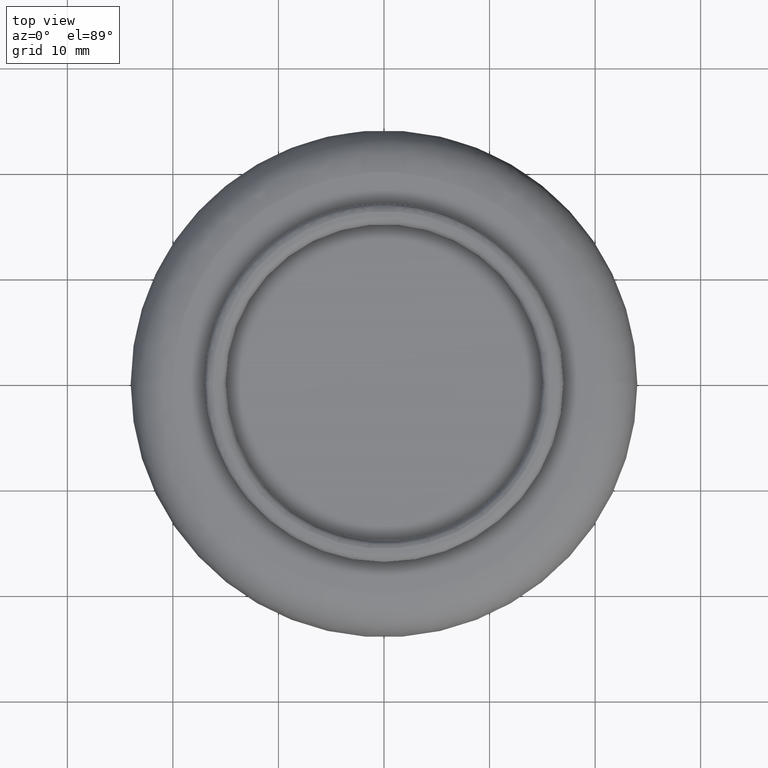
[diagram: clean part render]
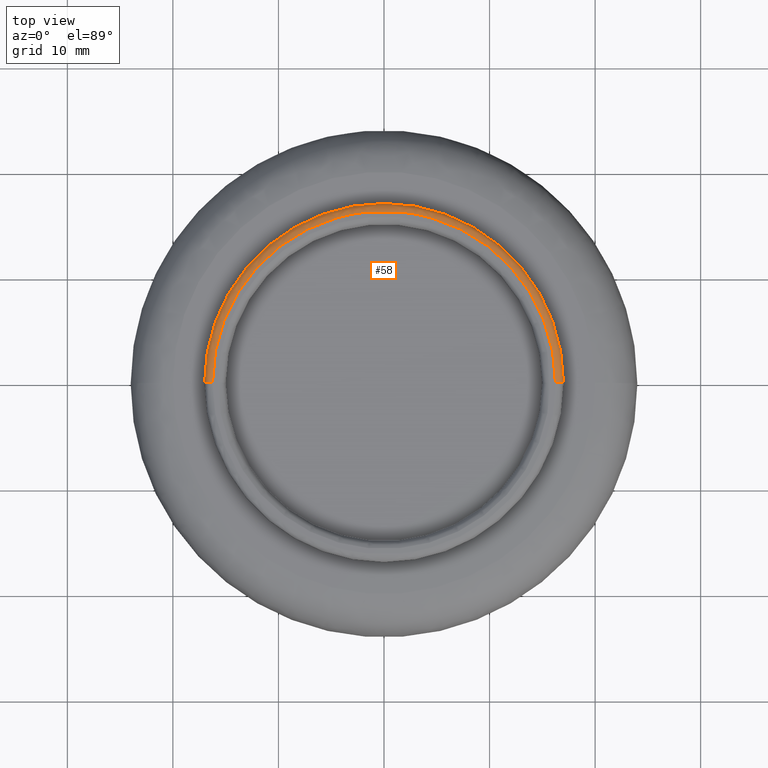
[diagram: same view with one face highlighted and labeled with its STEP entity id]
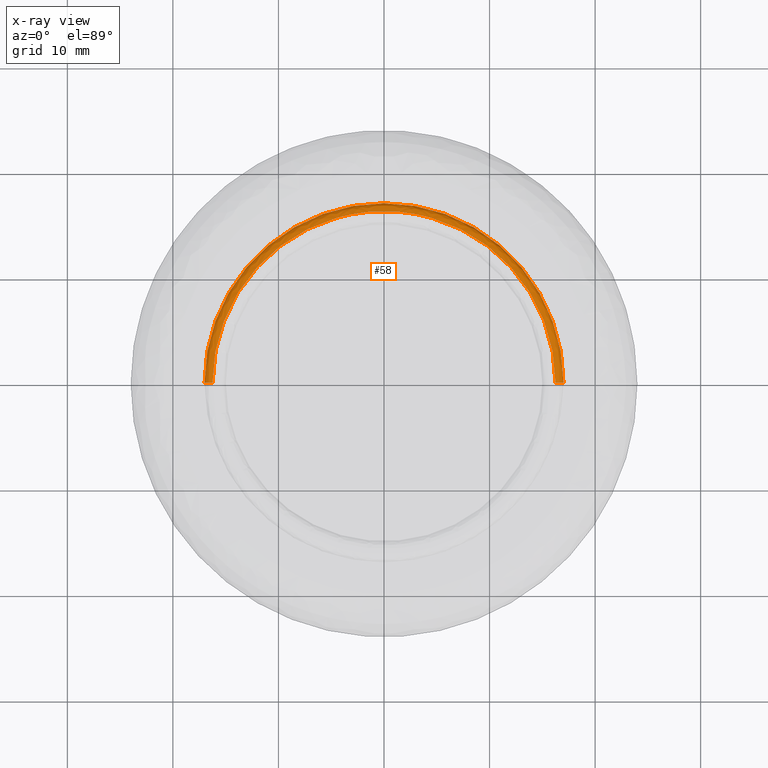
[diagram: x-ray of the same camera — body ghosted, the highlighted face saturated]
A machine part, top view. The second image highlights one B-rep face of the part: STEP entity #58.
The next image is the same camera in x-ray: the body ghosted, the highlighted face saturated — about 0% of this face is hidden behind the body in this view.
In plain terms, the highlighted face is a freeform B-spline surface patch.
Its self-contained STEP definition (entity closure, byte-faithful):
#58=ADVANCED_FACE('',(#253),#252,.T.);
#252=( BOUNDED_SURFACE() B_SPLINE_SURFACE( 2,2,((#542,#543,#544,#545,#546),(#547,#548,#549,#550,#551),(#552,#553,#554,#555,#556),(#557,#558,#559,#560,#561),(#562,#563,#564,#565,#566)), .UNSPECIFIED.,.F.,.F.,.F.) B_SPLINE_SURFACE_WITH_KNOTS((3,2,3),(3,2,3),(0.00000000000E+000,5.00000000000E-001,1.00000000000E+000),(0.00000000000E+000,5.00000000000E-001,1.00000000000E+000), .UNSPECIFIED. ) GEOMETRIC_REPRESENTATION_ITEM() RATIONAL_B_SPLINE_SURFACE(((1.00000000000E+000,7.07106781187E-001,1.00000000000E+000,7.07106781187E-001,1.00000000000E+000),(7.07106781187E-001,5.00000000000E-001,7.07106781187E-001,5.00000000000E-001,7.07106781187E-001),(1.00000000000E+000,7.07106781187E-001,1.00000000000E+000,7.07106781187E-001,1.00000000000E+000),(7.07106781187E-001,5.00000000000E-001,7.07106781187E-001,5.00000000000E-001,7.07106781187E-001),(1.00000000000E+000,7.07106781187E-001,1.00000000000E+000,7.07106781187E-001,1.00000000000E+000))) REPRESENTATION_ITEM('') SURFACE() );
#253=FACE_OUTER_BOUND('',#567,.T.);
#542=CARTESIAN_POINT('',(-1.55000000000E+001,-6.26902537127E-020,1.36500000000E+001));
#543=CARTESIAN_POINT('',(-1.55000000000E+001,-6.26902537127E-020,1.44000000000E+001));
#544=CARTESIAN_POINT('',(-1.62500000000E+001,-6.57236530859E-020,1.44000000000E+001));
#545=CARTESIAN_POINT('',(-1.70000000000E+001,-6.87570524591E-020,1.44000000000E+001));
#546=CARTESIAN_POINT('',(-1.70000000000E+001,-6.87570524591E-020,1.36500000000E+001));
#547=CARTESIAN_POINT('',(-1.55000000000E+001,1.55000000000E+001,1.36500000000E+001));
#548=CARTESIAN_POINT('',(-1.55000000000E+001,1.55000000000E+001,1.44000000000E+001));
#549=CARTESIAN_POINT('',(-1.62500000000E+001,1.62500000000E+001,1.44000000000E+001));
#550=CARTESIAN_POINT('',(-1.70000000000E+001,1.70000000000E+001,1.44000000000E+001));
#551=CARTESIAN_POINT('',(-1.70000000000E+001,1.70000000000E+001,1.36500000000E+001));
#552=CARTESIAN_POINT('',(-9.49163959593E-016,1.55000000000E+001,1.36500000000E+001));
#553=CARTESIAN_POINT('',(-9.49163959593E-016,1.55000000000E+001,1.44000000000E+001));
#554=CARTESIAN_POINT('',(-9.95091247961E-016,1.62500000000E+001,1.44000000000E+001));
#555=CARTESIAN_POINT('',(-1.04101853633E-015,1.70000000000E+001,1.44000000000E+001));
#556=CARTESIAN_POINT('',(-1.04101853633E-015,1.70000000000E+001,1.36500000000E+001));
#557=CARTESIAN_POINT('',(1.55000000000E+001,1.55000000000E+001,1.36500000000E+001));
#558=CARTESIAN_POINT('',(1.55000000000E+001,1.55000000000E+001,1.44000000000E+001));
#559=CARTESIAN_POINT('',(1.62500000000E+001,1.62500000000E+001,1.44000000000E+001));
#560=CARTESIAN_POINT('',(1.70000000000E+001,1.70000000000E+001,1.44000000000E+001));
#561=CARTESIAN_POINT('',(1.70000000000E+001,1.70000000000E+001,1.36500000000E+001));
#562=CARTESIAN_POINT('',(1.55000000000E+001,1.89826522893E-015,1.36500000000E+001));
#563=CARTESIAN_POINT('',(1.55000000000E+001,1.89826522893E-015,1.44000000000E+001));
#564=CARTESIAN_POINT('',(1.62500000000E+001,1.99011677227E-015,1.44000000000E+001));
#565=CARTESIAN_POINT('',(1.70000000000E+001,2.08196831560E-015,1.44000000000E+001));
#566=CARTESIAN_POINT('',(1.70000000000E+001,2.08196831560E-015,1.36500000000E+001));
#567=EDGE_LOOP('',(#718,#719,#720,#721));
#718=ORIENTED_EDGE('',*,*,#763,.T.);
#719=ORIENTED_EDGE('',*,*,#793,.T.);
#720=ORIENTED_EDGE('',*,*,#795,.F.);
#721=ORIENTED_EDGE('',*,*,#794,.F.);
#763=EDGE_CURVE('',#863,#862,#870,.T.);
#793=EDGE_CURVE('',#862,#1062,#1070,.T.);
#794=EDGE_CURVE('',#863,#1063,#1076,.T.);
#795=EDGE_CURVE('',#1063,#1062,#1082,.T.);
#862=VERTEX_POINT('',#1190);
#863=VERTEX_POINT('',#1191);
#870=CIRCLE('',#1199,1.62500000000E+001);
#1062=VERTEX_POINT('',#1316);
#1063=VERTEX_POINT('',#1317);
#1070=(BOUNDED_CURVE() B_SPLINE_CURVE(2,(#1322,#1323,#1324),.UNSPECIFIED.,.F.,.F.) B_SPLINE_CURVE_WITH_KNOTS((3,3),(5.00000000000E-001,1.00000000000E+000),.UNSPECIFIED.) CURVE() GEOMETRIC_REPRESENTATION_ITEM() RATIONAL_B_SPLINE_CURVE((1.00000000000E+000,7.07106781187E-001,1.00000000000E+000)) REPRESENTATION_ITEM('') );
#1076=(BOUNDED_CURVE() B_SPLINE_CURVE(3,(#1325,#1326,#1327,#1328),.UNSPECIFIED.,.F.,.F.) B_SPLINE_CURVE_WITH_KNOTS((4,4),(4.99999997230E-001,1.00000000000E+000),.UNSPECIFIED.) CURVE() GEOMETRIC_REPRESENTATION_ITEM() RATIONAL_B_SPLINE_CURVE((1.00000000000E+000,1.00000000000E+000,1.00000000000E+000,1.00000000000E+000)) REPRESENTATION_ITEM('') );
#1082=CIRCLE('',#1332,1.70000000000E+001);
#1190=CARTESIAN_POINT('',(1.62500000000E+001,5.92118946467E-016,1.44000000000E+001));
#1191=CARTESIAN_POINT('',(-1.62500000000E+001,0.00000000000E+000,1.44000000000E+001));
#1196=CARTESIAN_POINT('',(0.00000000000E+000,0.00000000000E+000,1.44000000000E+001));
#1197=DIRECTION('',(-0.00000000000E+000,0.00000000000E+000,-1.00000000000E+000));
#1198=DIRECTION('',(-1.00000000000E+000,-1.22460635382E-016,0.00000000000E+000));
#1199=AXIS2_PLACEMENT_3D('',#1196,#1197,#1198);
#1316=CARTESIAN_POINT('',(1.70000000000E+001,1.18423789293E-015,1.36500000000E+001));
#1317=CARTESIAN_POINT('',(-1.70000000000E+001,0.00000000000E+000,1.36500000000E+001));
#1322=CARTESIAN_POINT('',(1.62500000000E+001,-1.98998532496E-015,1.44000000000E+001));
#1323=CARTESIAN_POINT('',(1.70000000000E+001,-2.08183080150E-015,1.44000000000E+001));
#1324=CARTESIAN_POINT('',(1.70000000000E+001,-2.08183080150E-015,1.36500000000E+001));
#1325=CARTESIAN_POINT('',(-1.62499999941E+001,3.55271366409E-015,1.44000000000E+001));
#1326=CARTESIAN_POINT('',(-1.67071067784E+001,2.97802508669E-015,1.43571067840E+001));
#1327=CARTESIAN_POINT('',(-1.69571067803E+001,2.97802509160E-015,1.41071067840E+001));
#1328=CARTESIAN_POINT('',(-1.70000000000E+001,3.55271367880E-015,1.36500000000E+001));
#1329=CARTESIAN_POINT('',(0.00000000000E+000,0.00000000000E+000,1.36500000000E+001));
#1330=DIRECTION('',(-0.00000000000E+000,0.00000000000E+000,-1.00000000000E+000));
#1331=DIRECTION('',(-1.00000000000E+000,-1.22460635382E-016,0.00000000000E+000));
#1332=AXIS2_PLACEMENT_3D('',#1329,#1330,#1331);